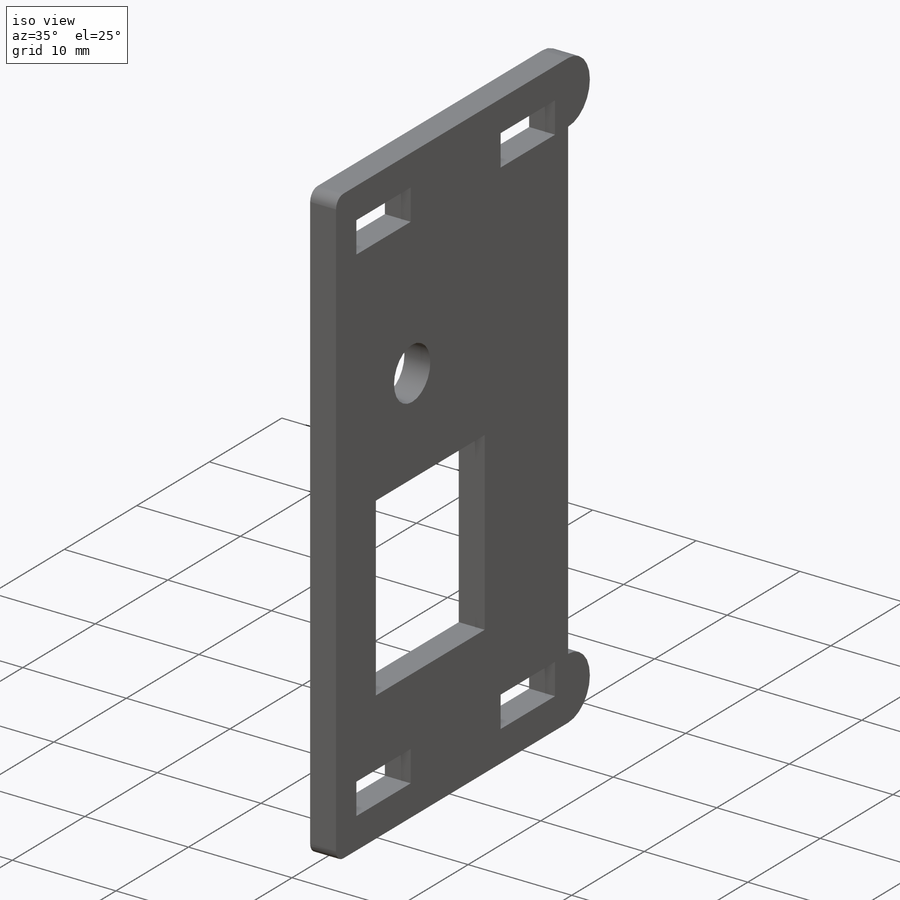
[diagram: iso view]
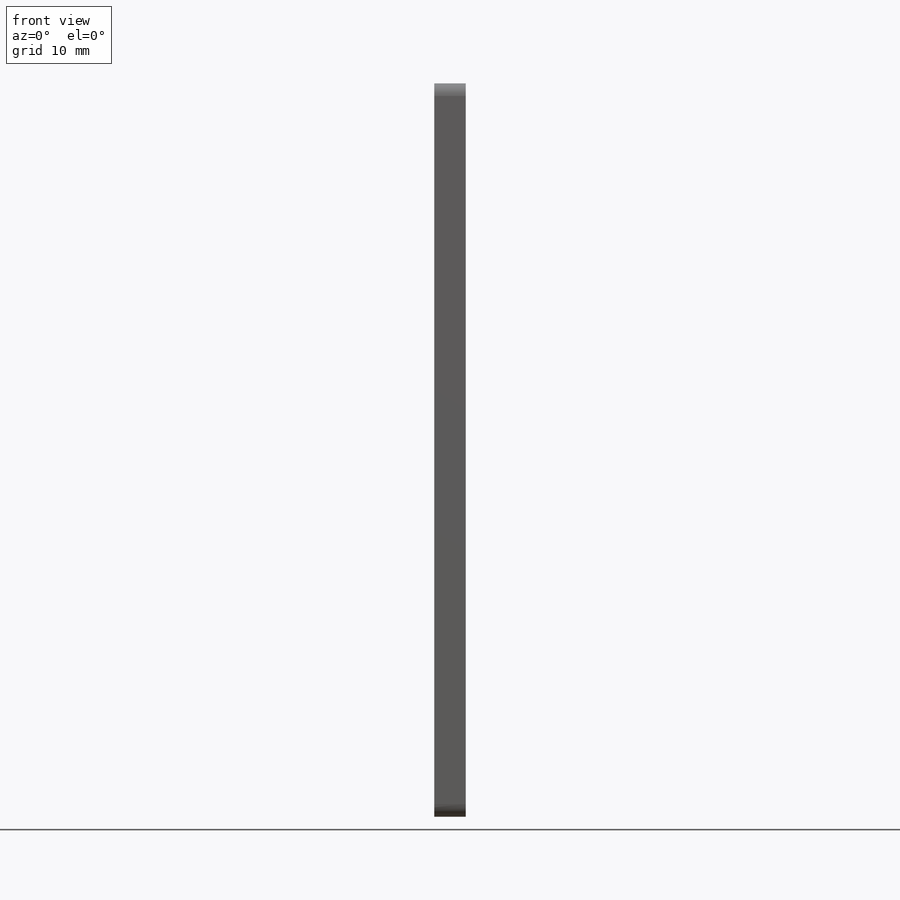
[diagram: front view]
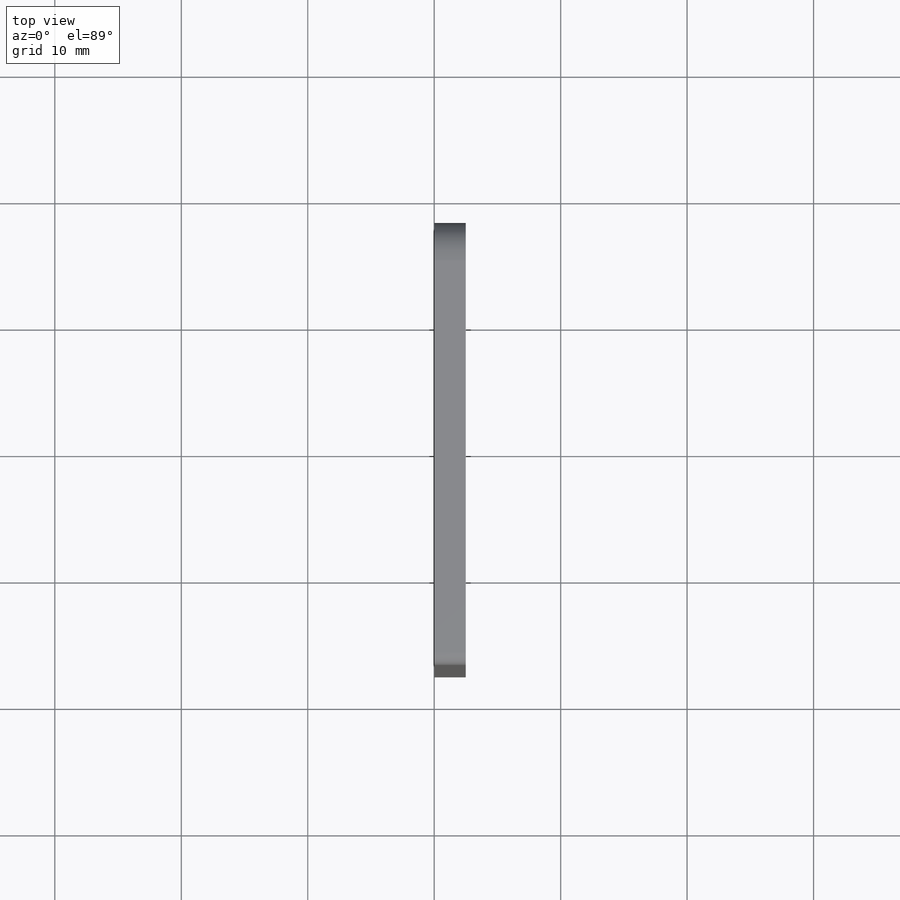
[diagram: top view]
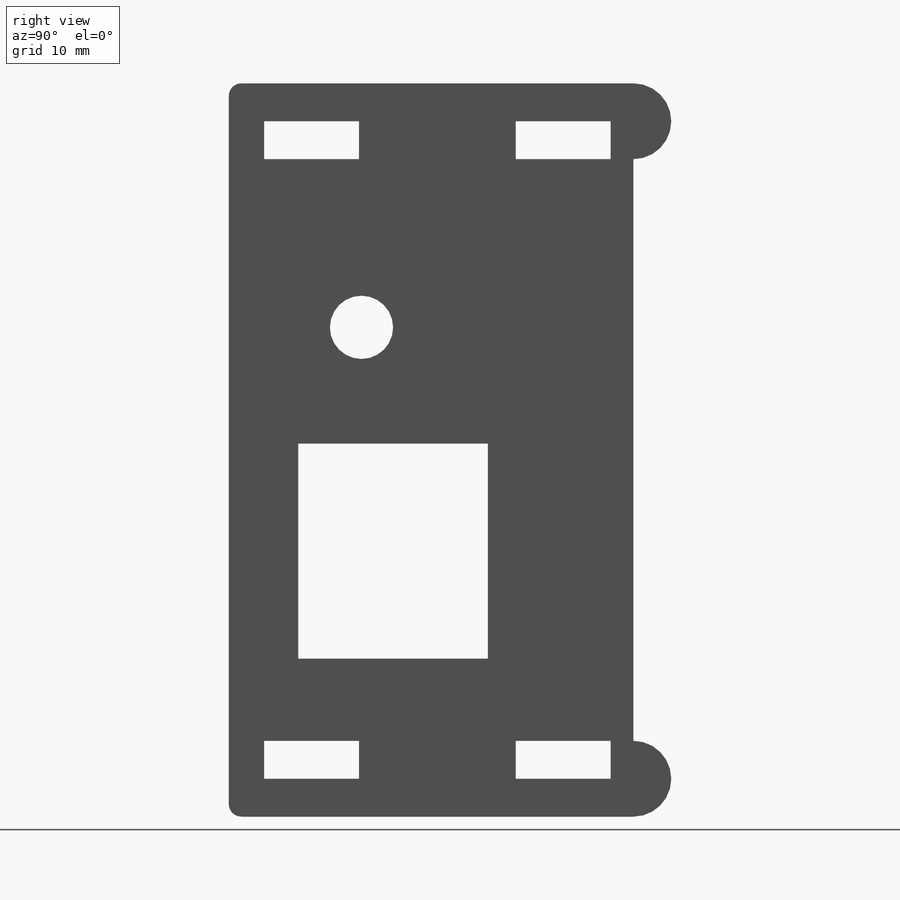
[diagram: right view]
SOLIDWORKS PART (.sldprt)
format: sldprt  version: not decoded by parser v0  size: 492,544 bytes
history: native  units: mm
features: sketch x4, plane x3, cut_extrude x3, material x1, extrude x1, fillet x1 (+10 scaffold rows collapsed)
feature tree (23):
  scaffold x10  (default folders/planes/origin — collapsed)
  material  "材质 <未指定>"
  plane  "前视"
  plane  "上视"
  plane  "右视"
  sketch  "草图2"  dims[D1=58.0mm D2=35.0mm]
  extrude  "凸台-拉伸1"  Depth=2.5mm
  sketch  "草图4"  dims[D1=3.0mm D2=4.8mm D3=3.0mm D4=7.5mm D5=7.5mm D6=3.0mm D7=2.8mm D8=3.0mm]
  cut_extrude  "切除-拉伸1"  [1 undecoded]
  sketch  "草图5"  dims[c1.D1=3.0mm c1.D2=3.0mm c1.D3=9.5mm c1.D4=10.0mm c1.D5=10.0mm c1.D6=10.0mm c2.D3=150.0deg]
  cut_extrude  "切除-拉伸2"  [1 undecoded]
  sketch  "草图7"  dims[D7=5.0mm D1=9.5mm D2=17.0mm D3=15.0mm D4=11.5mm D5=9.2mm D6=21.5mm]
  cut_extrude  "切除-拉伸3"  [1 undecoded]
  fillet  "圆角1"  Radius=1mm
decode coverage: 6 of 9 modeling features carry decoded parameters
note: 3 parameter values undecoded
summary: no parameter record found for 3 features
note: suppression state not decoded; provenance and decode notes live in map.json
